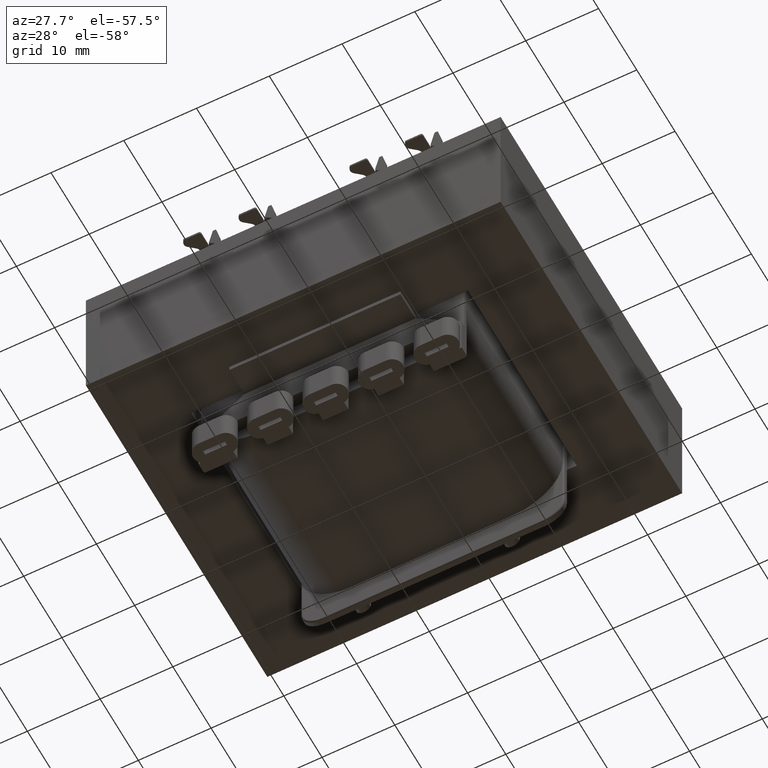
[diagram: clean part render]
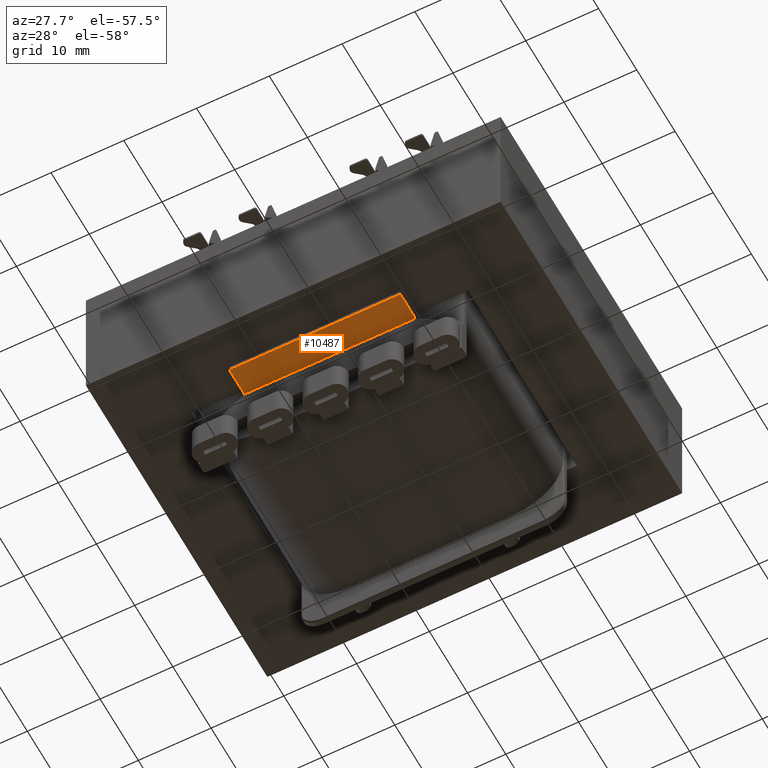
[diagram: same view with one face highlighted and labeled with its STEP entity id]
A machine part, auxiliary view. The second image highlights one B-rep face of the part: STEP entity #10487.
In plain terms, the highlighted planar face has unit normal (0, 0, 1).
Its self-contained STEP definition (entity closure, byte-faithful):
#705 = VERTEX_POINT ( 'NONE', #2599 ) ;
#873 = CARTESIAN_POINT ( 'NONE',  ( -11.74750000000000227, -10.54100000000000925, 27.55900000000000105 ) ) ;
#1128 = EDGE_CURVE ( 'NONE', #705, #10406, #7603, .T. ) ;
#1267 = CARTESIAN_POINT ( 'NONE',  ( -11.74750000000000050, -10.54100000000000747, 31.49599999999999511 ) ) ;
#1300 = DIRECTION ( 'NONE',  ( 0.000000000000000000, 1.000000000000000000, 0.000000000000000000 ) ) ;
#1337 = DIRECTION ( 'NONE',  ( -0.000000000000000000, -0.000000000000000000, -1.000000000000000000 ) ) ;
#1465 = DIRECTION ( 'NONE',  ( -1.000000000000000000, 0.000000000000000000, 0.000000000000000000 ) ) ;
#1796 = ORIENTED_EDGE ( 'NONE', *, *, #8458, .F. ) ;
#2320 = CARTESIAN_POINT ( 'NONE',  ( -11.74750000000000050, -10.54100000000000747, 73.11045730744093873 ) ) ;
#2388 = DIRECTION ( 'NONE',  ( 0.000000000000000000, -0.000000000000000000, 1.000000000000000000 ) ) ;
#2599 = CARTESIAN_POINT ( 'NONE',  ( -11.74750000000000050, -10.54100000000000747, 31.49599999999999511 ) ) ;
#3733 = CARTESIAN_POINT ( 'NONE',  ( 0.000000000000000000, -10.54100000000000747, 27.55900000000000105 ) ) ;
#3976 = EDGE_CURVE ( 'NONE', #705, #7958, #9015, .T. ) ;
#4176 = ORIENTED_EDGE ( 'NONE', *, *, #1128, .T. ) ;
#4755 = EDGE_LOOP ( 'NONE', ( #4176, #7395, #1796, #5816 ) ) ;
#4973 = LINE ( 'NONE', #3733, #9488 ) ;
#5192 = CARTESIAN_POINT ( 'NONE',  ( 11.74750000000000050, -10.54100000000000747, 31.49599999999999511 ) ) ;
#5816 = ORIENTED_EDGE ( 'NONE', *, *, #3976, .F. ) ;
#5829 = PLANE ( 'NONE',  #5976 ) ;
#5976 = AXIS2_PLACEMENT_3D ( 'NONE', #2320, #1300, #2388 ) ;
#7395 = ORIENTED_EDGE ( 'NONE', *, *, #12381, .F. ) ;
#7603 = LINE ( 'NONE', #8774, #11426 ) ;
#7937 = VERTEX_POINT ( 'NONE', #9580 ) ;
#7958 = VERTEX_POINT ( 'NONE', #5192 ) ;
#8007 = FACE_OUTER_BOUND ( 'NONE', #4755, .T. ) ;
#8458 = EDGE_CURVE ( 'NONE', #7958, #7937, #10245, .T. ) ;
#8613 = VECTOR ( 'NONE', #1337, 1000.000000000000000 ) ;
#8774 = CARTESIAN_POINT ( 'NONE',  ( -11.74750000000000050, -10.54100000000000747, 73.11045730744093873 ) ) ;
#9015 = LINE ( 'NONE', #1267, #11995 ) ;
#9488 = VECTOR ( 'NONE', #1465, 1000.000000000000000 ) ;
#9580 = CARTESIAN_POINT ( 'NONE',  ( 11.74750000000000050, -10.54100000000001103, 27.55900000000000105 ) ) ;
#10245 = LINE ( 'NONE', #11345, #8613 ) ;
#10406 = VERTEX_POINT ( 'NONE', #873 ) ;
#10487 = ADVANCED_FACE ( 'NONE', ( #8007 ), #5829, .F. ) ;
#11345 = CARTESIAN_POINT ( 'NONE',  ( 11.74750000000000050, -10.54100000000000747, 73.11045730744093873 ) ) ;
#11426 = VECTOR ( 'NONE', #12073, 1000.000000000000000 ) ;
#11995 = VECTOR ( 'NONE', #12375, 1000.000000000000000 ) ;
#12073 = DIRECTION ( 'NONE',  ( -0.000000000000000000, -0.000000000000000000, -1.000000000000000000 ) ) ;
#12375 = DIRECTION ( 'NONE',  ( 1.000000000000000000, 0.000000000000000000, 0.000000000000000000 ) ) ;
#12381 = EDGE_CURVE ( 'NONE', #7937, #10406, #4973, .T. ) ;